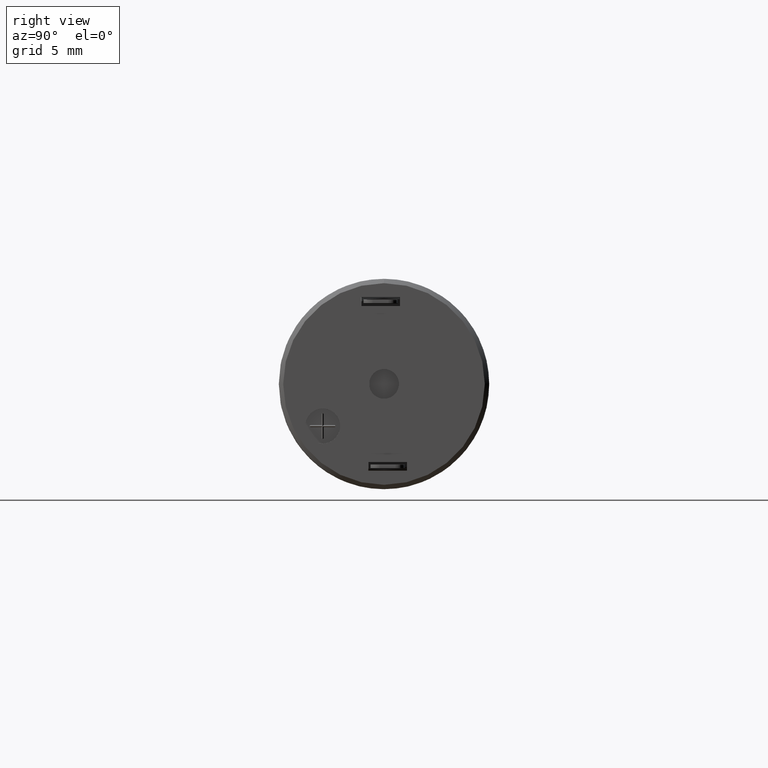
[diagram: clean part render]
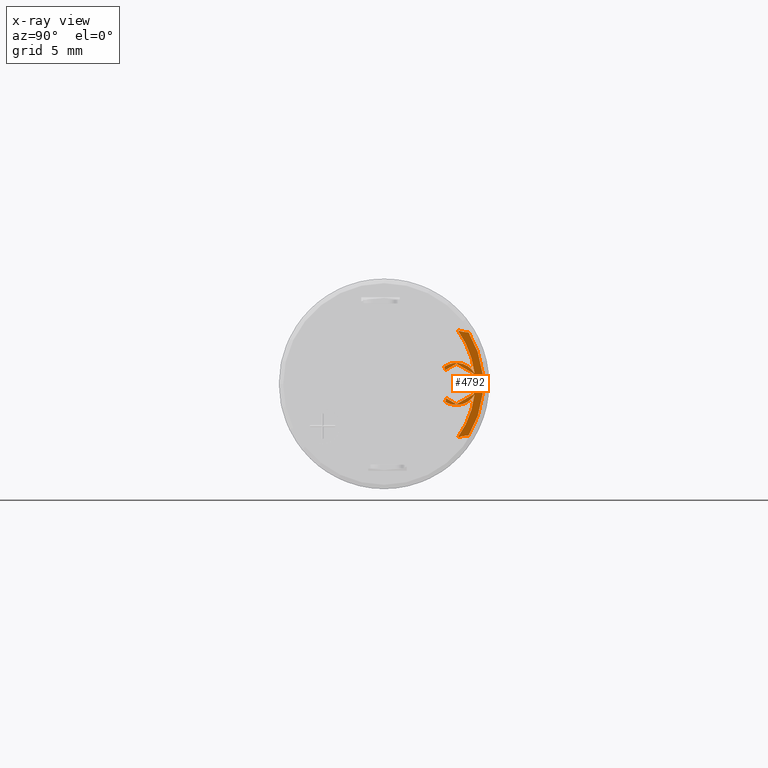
[diagram: x-ray — body ghosted, one internal face saturated and labeled with its STEP entity id]
A machine part, right view, then the same camera in x-ray: the body is ghosted and one INTERNAL B-rep face — a face not visible from any outside direction — is saturated and labeled: STEP entity #4792.
In plain terms, the highlighted planar face has unit normal (1, 0, 0).
Its self-contained STEP definition (entity closure, byte-faithful):
#416=DIRECTION('',(0.E0,-1.030707999902E-13,-1.E0));
#417=VECTOR('',#416,1.154700538379E0);
#418=CARTESIAN_POINT('',(1.71E1,5.13E0,5.773502691895E-1));
#419=LINE('',#418,#417);
#428=CARTESIAN_POINT('',(1.71E1,-6.E-2,-1.3E-1));
#429=DIRECTION('',(-1.E0,0.E0,0.E0));
#430=DIRECTION('',(0.E0,9.531323181618E-1,3.025537705525E-1));
#431=AXIS2_PLACEMENT_3D('',#428,#429,#430);
#433=CARTESIAN_POINT('',(1.71E1,4.13E0,0.E0));
#434=DIRECTION('',(1.E0,0.E0,0.E0));
#435=DIRECTION('',(0.E0,8.618946731234E-1,5.070873420245E-1));
#436=AXIS2_PLACEMENT_3D('',#433,#434,#435);
#438=CARTESIAN_POINT('',(1.71E1,0.E0,0.E0));
#439=DIRECTION('',(-1.E0,0.E0,0.E0));
#440=DIRECTION('',(0.E0,8.095644720529E-1,5.870309749832E-1));
#441=AXIS2_PLACEMENT_3D('',#438,#439,#440);
#443=CARTESIAN_POINT('',(1.71E1,4.843681451128E0,4.843681451128E0));
#444=DIRECTION('',(-1.E0,0.E0,0.E0));
#445=DIRECTION('',(0.E0,-1.114603739684E-2,-9.999378809958E-1));
#446=AXIS2_PLACEMENT_3D('',#443,#444,#445);
#448=CARTESIAN_POINT('',(1.71E1,0.E0,0.E0));
#449=DIRECTION('',(1.E0,0.E0,0.E0));
#450=DIRECTION('',(0.E0,8.535405274467E-1,-5.210264561479E-1));
#451=AXIS2_PLACEMENT_3D('',#448,#449,#450);
#453=CARTESIAN_POINT('',(1.71E1,4.843681451128E0,-4.843681451128E0));
#454=DIRECTION('',(-1.E0,0.E0,0.E0));
#455=DIRECTION('',(0.E0,-3.336558928700E-1,9.426949374814E-1));
#456=AXIS2_PLACEMENT_3D('',#453,#454,#455);
#458=CARTESIAN_POINT('',(1.71E1,0.E0,0.E0));
#459=DIRECTION('',(-1.E0,0.E0,0.E0));
#460=DIRECTION('',(0.E0,9.931295399516E-1,-1.170201558518E-1));
#461=AXIS2_PLACEMENT_3D('',#458,#459,#460);
#463=CARTESIAN_POINT('',(1.71E1,4.13E0,0.E0));
#464=DIRECTION('',(1.E0,0.E0,0.E0));
#465=DIRECTION('',(0.E0,-5.249144432415E-1,-8.511549960356E-1));
#466=AXIS2_PLACEMENT_3D('',#463,#464,#465);
#468=CARTESIAN_POINT('',(1.71E1,-6.E-2,-1.3E-1));
#469=DIRECTION('',(-1.E0,0.E0,0.E0));
#470=DIRECTION('',(0.E0,9.823219829320E-1,-1.871991502344E-1));
#471=AXIS2_PLACEMENT_3D('',#468,#469,#470);
#473=DIRECTION('',(3.940098981551E-12,-8.660254037845E-1,4.999999999999E-1));
#474=VECTOR('',#473,6.753593140379E-1);
#475=CARTESIAN_POINT('',(1.71E1,4.13E0,-1.154700538379E0));
#476=LINE('',#475,#474);
#477=DIRECTION('',(0.E0,-8.660254037845E-1,-4.999999999999E-1));
#478=VECTOR('',#477,1.154700538379E0);
#479=CARTESIAN_POINT('',(1.71E1,5.13E0,-5.773502691897E-1));
#480=LINE('',#479,#478);
#481=DIRECTION('',(0.E0,8.660254037844E-1,-5.E-1));
#482=VECTOR('',#481,1.154700538379E0);
#483=CARTESIAN_POINT('',(1.71E1,4.13E0,1.154700538379E0));
#484=LINE('',#483,#482);
#485=DIRECTION('',(-3.625556109893E-12,8.660254037846E-1,4.999999999998E-1));
#486=VECTOR('',#485,7.349314638462E-1);
#487=CARTESIAN_POINT('',(1.71E1,3.493530682269E0,7.872348064561E-1));
#488=LINE('',#487,#486);
#3437=CARTESIAN_POINT('',(1.71E1,4.822503980074E0,2.943799477237E0));
#3438=CARTESIAN_POINT('',(1.71E1,4.209735254675E0,3.052561069914E0));
#3439=VERTEX_POINT('',#3437);
#3440=VERTEX_POINT('',#3438);
#3441=CARTESIAN_POINT('',(1.71E1,4.822503980074E0,-2.943799477236E0));
#3442=VERTEX_POINT('',#3441);
#3443=CARTESIAN_POINT('',(1.71E1,4.209735254675E0,-3.052561069914E0));
#3444=VERTEX_POINT('',#3443);
#3445=CARTESIAN_POINT('',(1.71E1,5.164273607748E0,-6.085048104293E-1));
#3446=VERTEX_POINT('',#3445);
#3447=CARTESIAN_POINT('',(1.71E1,5.164273607748E0,6.085048104293E-1));
#3448=VERTEX_POINT('',#3447);
#3449=CARTESIAN_POINT('',(1.71E1,5.13E0,-5.773502691897E-1));
#3450=CARTESIAN_POINT('',(1.71E1,4.13E0,-1.154700538379E0));
#3451=VERTEX_POINT('',#3449);
#3452=VERTEX_POINT('',#3450);
#3453=CARTESIAN_POINT('',(1.71E1,5.13E0,5.773502691895E-1));
#3454=VERTEX_POINT('',#3453);
#3455=CARTESIAN_POINT('',(1.71E1,4.13E0,1.154700538379E0));
#3456=VERTEX_POINT('',#3455);
#3984=CARTESIAN_POINT('',(1.71E1,3.437995607654E0,9.803723379276E-1));
#3986=VERTEX_POINT('',#3984);
#3988=CARTESIAN_POINT('',(1.71E1,3.500102668110E0,-1.021385995243E0));
#3990=VERTEX_POINT('',#3988);
#3999=CARTESIAN_POINT('',(1.71E1,3.493530682269E0,7.872348064561E-1));
#4000=VERTEX_POINT('',#3999);
#4001=CARTESIAN_POINT('',(1.71E1,3.545121677361E0,-8.170208813602E-1));
#4002=VERTEX_POINT('',#4001);
#4767=CARTESIAN_POINT('',(1.71E1,4.289999252683E0,0.E0));
#4768=DIRECTION('',(1.E0,0.E0,0.E0));
#4769=DIRECTION('',(0.E0,0.E0,-1.E0));
#4770=AXIS2_PLACEMENT_3D('',#4767,#4768,#4769);
#4771=PLANE('',#4770);
#4772=ORIENTED_EDGE('',*,*,#4492,.F.);
#4774=ORIENTED_EDGE('',*,*,#4773,.F.);
#4776=ORIENTED_EDGE('',*,*,#4775,.F.);
#4778=ORIENTED_EDGE('',*,*,#4777,.F.);
#4779=ORIENTED_EDGE('',*,*,#4285,.F.);
#4780=ORIENTED_EDGE('',*,*,#4346,.F.);
#4781=ORIENTED_EDGE('',*,*,#4374,.F.);
#4783=ORIENTED_EDGE('',*,*,#4782,.F.);
#4784=ORIENTED_EDGE('',*,*,#4633,.F.);
#4785=ORIENTED_EDGE('',*,*,#4707,.F.);
#4786=ORIENTED_EDGE('',*,*,#4720,.F.);
#4787=ORIENTED_EDGE('',*,*,#4734,.F.);
#4788=ORIENTED_EDGE('',*,*,#4748,.F.);
#4789=ORIENTED_EDGE('',*,*,#4760,.F.);
#4790=EDGE_LOOP('',(#4772,#4774,#4776,#4778,#4779,#4780,#4781,#4783,#4784,#4785,
#4786,#4787,#4788,#4789));
#4791=FACE_OUTER_BOUND('',#4790,.F.);
#4792=ADVANCED_FACE('',(#4791),#4771,.T.);
#432=CIRCLE('',#431,3.67E0);
#437=CIRCLE('',#436,1.2E0);
#442=CIRCLE('',#441,5.2E0);
#447=CIRCLE('',#446,1.899999999999E0);
#452=CIRCLE('',#451,5.65E0);
#457=CIRCLE('',#456,1.899999999999E0);
#462=CIRCLE('',#461,5.2E0);
#467=CIRCLE('',#466,1.2E0);
#472=CIRCLE('',#471,3.67E0);
#4285=EDGE_CURVE('',#3442,#3439,#452,.T.);
#4346=EDGE_CURVE('',#3444,#3442,#457,.T.);
#4374=EDGE_CURVE('',#3446,#3444,#462,.T.);
#4492=EDGE_CURVE('',#3986,#4000,#432,.T.);
#4633=EDGE_CURVE('',#4002,#3990,#472,.T.);
#4707=EDGE_CURVE('',#3452,#4002,#476,.T.);
#4720=EDGE_CURVE('',#3451,#3452,#480,.T.);
#4734=EDGE_CURVE('',#3454,#3451,#419,.T.);
#4748=EDGE_CURVE('',#3456,#3454,#484,.T.);
#4760=EDGE_CURVE('',#4000,#3456,#488,.T.);
#4773=EDGE_CURVE('',#3448,#3986,#437,.T.);
#4775=EDGE_CURVE('',#3440,#3448,#442,.T.);
#4777=EDGE_CURVE('',#3439,#3440,#447,.T.);
#4782=EDGE_CURVE('',#3990,#3446,#467,.T.);